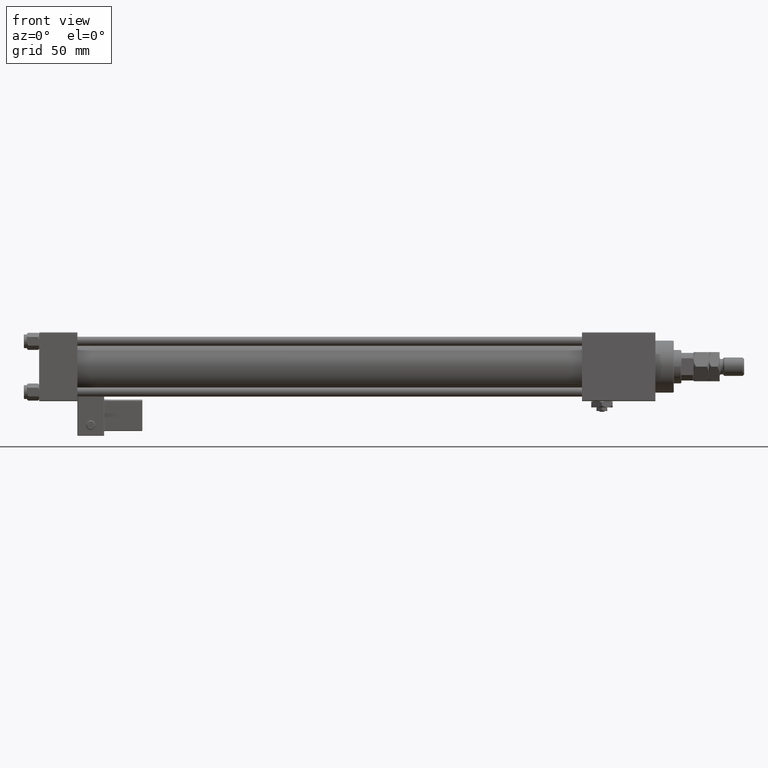
[diagram: clean part render]
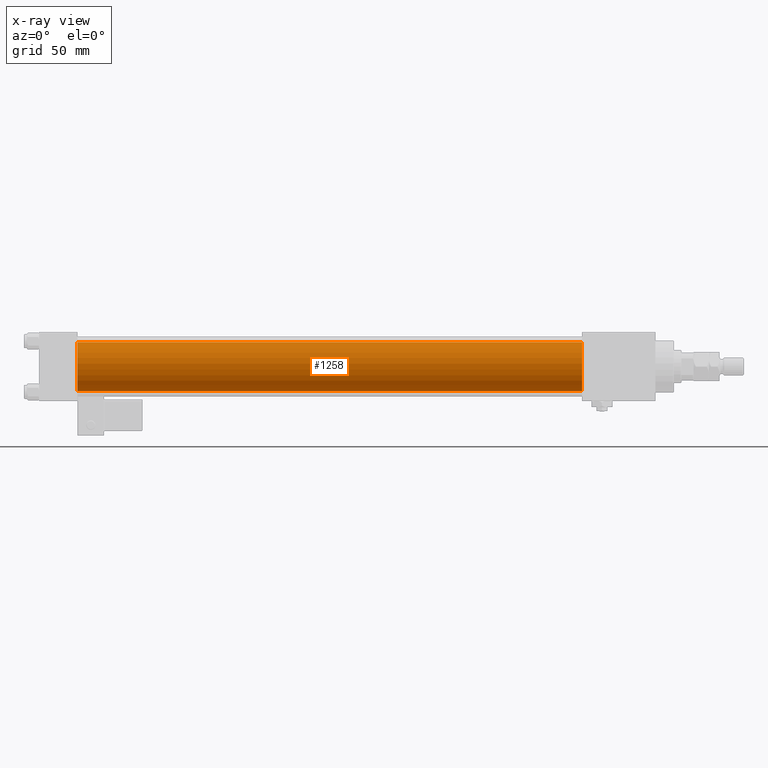
[diagram: x-ray — body ghosted, one internal face saturated and labeled with its STEP entity id]
A machine part, front view, then the same camera in x-ray: the body is ghosted and one INTERNAL B-rep face — a face not visible from any outside direction — is saturated and labeled: STEP entity #1258.
In plain terms, the highlighted cylindrical surface (edge-blend (fillet) strip) has radius 16 mm, axis along (-1, -0, -0).
Its self-contained STEP definition (entity closure, byte-faithful):
#428 = DIRECTION ( 'NONE',  ( 0.000000000000000000, 0.000000000000000000, -1.000000000000000000 ) ) ;
#1258 = ADVANCED_FACE ( 'NONE', ( #37124 ), #42198, .F. ) ;
#3778 = CARTESIAN_POINT ( 'NONE',  ( 25.00000000000000000, -2.602085213965210642E-15, 0.000000000000000000 ) ) ;
#6165 = EDGE_CURVE ( 'NONE', #52182, #47733, #26907, .T. ) ;
#7217 = CARTESIAN_POINT ( 'NONE',  ( 355.0000000000000568, -6.426503353294456087E-16, -16.00000000000000000 ) ) ;
#8644 = CARTESIAN_POINT ( 'NONE',  ( 355.0000000000000568, -2.602085213965210642E-15, 16.00000000000000000 ) ) ;
#9853 = ORIENTED_EDGE ( 'NONE', *, *, #51268, .F. ) ;
#11440 = LINE ( 'NONE', #7217, #37036 ) ;
#12086 = CIRCLE ( 'NONE', #48043, 16.00000000000000000 ) ;
#12361 = DIRECTION ( 'NONE',  ( 0.000000000000000000, 0.000000000000000000, 1.000000000000000000 ) ) ;
#12983 = CIRCLE ( 'NONE', #46249, 16.00000000000000000 ) ;
#14813 = CARTESIAN_POINT ( 'NONE',  ( 355.0000000000000568, -6.426503353294456087E-16, -16.00000000000000000 ) ) ;
#17726 = EDGE_CURVE ( 'NONE', #44864, #46242, #11440, .T. ) ;
#22252 = AXIS2_PLACEMENT_3D ( 'NONE', #54594, #24450, #12361 ) ;
#22405 = DIRECTION ( 'NONE',  ( -1.000000000000000000, -0.000000000000000000, -0.000000000000000000 ) ) ;
#23601 = ORIENTED_EDGE ( 'NONE', *, *, #6165, .F. ) ;
#24450 = DIRECTION ( 'NONE',  ( -1.000000000000000000, -0.000000000000000000, -0.000000000000000000 ) ) ;
#24983 = ORIENTED_EDGE ( 'NONE', *, *, #17726, .T. ) ;
#26907 = LINE ( 'NONE', #8644, #26955 ) ;
#26955 = VECTOR ( 'NONE', #22405, 1000.000000000000000 ) ;
#29113 = DIRECTION ( 'NONE',  ( 1.000000000000000000, 0.000000000000000000, 0.000000000000000000 ) ) ;
#29435 = EDGE_LOOP ( 'NONE', ( #48488, #24983, #9853, #23601 ) ) ;
#29720 = CARTESIAN_POINT ( 'NONE',  ( 355.0000000000000568, -2.602085213965210642E-15, 0.000000000000000000 ) ) ;
#30370 = CARTESIAN_POINT ( 'NONE',  ( 25.00000000000000000, -2.602085213965210642E-15, 16.00000000000000000 ) ) ;
#33118 = DIRECTION ( 'NONE',  ( -1.000000000000000000, -0.000000000000000000, -0.000000000000000000 ) ) ;
#33628 = DIRECTION ( 'NONE',  ( 0.000000000000000000, 0.000000000000000000, -1.000000000000000000 ) ) ;
#37036 = VECTOR ( 'NONE', #33118, 1000.000000000000000 ) ;
#37124 = FACE_OUTER_BOUND ( 'NONE', #29435, .T. ) ;
#38443 = DIRECTION ( 'NONE',  ( 1.000000000000000000, 0.000000000000000000, 0.000000000000000000 ) ) ;
#39478 = CARTESIAN_POINT ( 'NONE',  ( 355.0000000000000568, -2.602085213965210642E-15, 16.00000000000000000 ) ) ;
#42198 = CYLINDRICAL_SURFACE ( 'NONE', #22252, 16.00000000000000000 ) ;
#44864 = VERTEX_POINT ( 'NONE', #14813 ) ;
#46242 = VERTEX_POINT ( 'NONE', #47394 ) ;
#46249 = AXIS2_PLACEMENT_3D ( 'NONE', #3778, #29113, #33628 ) ;
#47394 = CARTESIAN_POINT ( 'NONE',  ( 25.00000000000000000, -6.426503353294456087E-16, -16.00000000000000000 ) ) ;
#47733 = VERTEX_POINT ( 'NONE', #30370 ) ;
#48043 = AXIS2_PLACEMENT_3D ( 'NONE', #29720, #38443, #428 ) ;
#48488 = ORIENTED_EDGE ( 'NONE', *, *, #53645, .T. ) ;
#51268 = EDGE_CURVE ( 'NONE', #47733, #46242, #12983, .T. ) ;
#52182 = VERTEX_POINT ( 'NONE', #39478 ) ;
#53645 = EDGE_CURVE ( 'NONE', #52182, #44864, #12086, .T. ) ;
#54594 = CARTESIAN_POINT ( 'NONE',  ( 355.0000000000000568, -2.602085213965210642E-15, 0.000000000000000000 ) ) ;